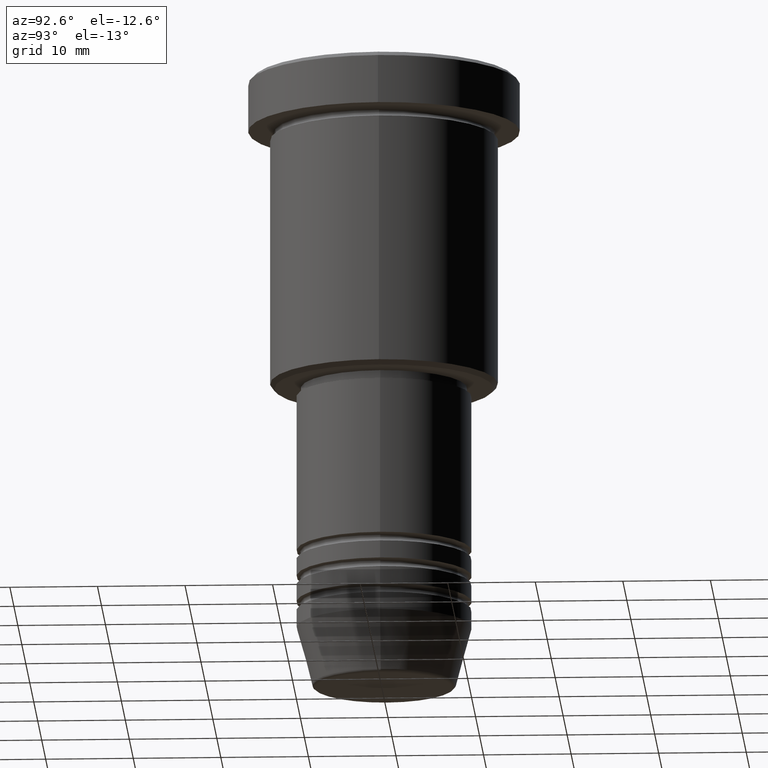
[diagram: clean part render]
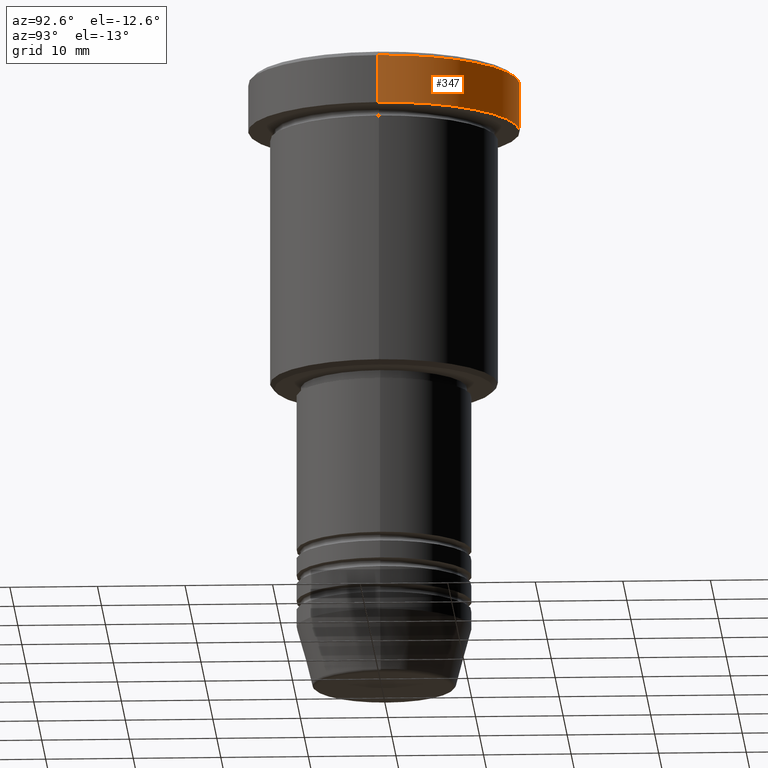
[diagram: same view with one face highlighted and labeled with its STEP entity id]
A machine part, auxiliary view. The second image highlights one B-rep face of the part: STEP entity #347.
In plain terms, the highlighted cylindrical surface (partial cylindrical patch) has radius 15.5 mm, axis along (-0, -0, 1).
Its self-contained STEP definition (entity closure, byte-faithful):
#17 = CARTESIAN_POINT ( 'NONE',  ( -15.50000000000000000, 1.898202538678397557E-15, -5.999999999999995559 ) ) ;
#24 = VERTEX_POINT ( 'NONE', #769 ) ;
#30 = VECTOR ( 'NONE', #60, 1000.000000000000000 ) ;
#60 = DIRECTION ( 'NONE',  ( -0.000000000000000000, -0.000000000000000000, 1.000000000000000000 ) ) ;
#101 = CARTESIAN_POINT ( 'NONE',  ( 0.000000000000000000, 0.000000000000000000, 0.000000000000000000 ) ) ;
#117 = ORIENTED_EDGE ( 'NONE', *, *, #476, .T. ) ;
#150 = CIRCLE ( 'NONE', #168, 15.50000000000000000 ) ;
#168 = AXIS2_PLACEMENT_3D ( 'NONE', #1145, #233, #589 ) ;
#174 = EDGE_CURVE ( 'NONE', #925, #24, #994, .T. ) ;
#175 = CARTESIAN_POINT ( 'NONE',  ( 15.50000000000000000, 0.000000000000000000, 0.000000000000000000 ) ) ;
#233 = DIRECTION ( 'NONE',  ( -0.000000000000000000, -0.000000000000000000, 1.000000000000000000 ) ) ;
#238 = DIRECTION ( 'NONE',  ( -0.000000000000000000, -0.000000000000000000, 1.000000000000000000 ) ) ;
#248 = CARTESIAN_POINT ( 'NONE',  ( -15.50000000000000000, 1.898202538678397557E-15, 0.000000000000000000 ) ) ;
#290 = CYLINDRICAL_SURFACE ( 'NONE', #412, 15.50000000000000000 ) ;
#313 = CARTESIAN_POINT ( 'NONE',  ( 15.50000000000000000, 0.000000000000000000, -5.999999999999995559 ) ) ;
#330 = LINE ( 'NONE', #248, #30 ) ;
#347 = ADVANCED_FACE ( 'NONE', ( #1097 ), #290, .T. ) ;
#376 = VERTEX_POINT ( 'NONE', #17 ) ;
#410 = VECTOR ( 'NONE', #238, 1000.000000000000000 ) ;
#412 = AXIS2_PLACEMENT_3D ( 'NONE', #101, #816, #450 ) ;
#430 = AXIS2_PLACEMENT_3D ( 'NONE', #581, #936, #962 ) ;
#435 = EDGE_CURVE ( 'NONE', #925, #376, #150, .T. ) ;
#450 = DIRECTION ( 'NONE',  ( 1.000000000000000000, 0.000000000000000000, 0.000000000000000000 ) ) ;
#476 = EDGE_CURVE ( 'NONE', #587, #24, #949, .T. ) ;
#514 = CARTESIAN_POINT ( 'NONE',  ( -15.50000000000000000, 1.898202538678397557E-15, -0.4999999999999917843 ) ) ;
#581 = CARTESIAN_POINT ( 'NONE',  ( 0.000000000000000000, 0.000000000000000000, -0.4999999999999917843 ) ) ;
#587 = VERTEX_POINT ( 'NONE', #514 ) ;
#589 = DIRECTION ( 'NONE',  ( 1.000000000000000000, 0.000000000000000000, 0.000000000000000000 ) ) ;
#725 = ORIENTED_EDGE ( 'NONE', *, *, #1046, .T. ) ;
#769 = CARTESIAN_POINT ( 'NONE',  ( 15.50000000000000000, 0.000000000000000000, -0.4999999999999917843 ) ) ;
#816 = DIRECTION ( 'NONE',  ( -0.000000000000000000, -0.000000000000000000, 1.000000000000000000 ) ) ;
#903 = ORIENTED_EDGE ( 'NONE', *, *, #435, .T. ) ;
#925 = VERTEX_POINT ( 'NONE', #313 ) ;
#933 = EDGE_LOOP ( 'NONE', ( #903, #725, #117, #1166 ) ) ;
#936 = DIRECTION ( 'NONE',  ( 0.000000000000000000, 0.000000000000000000, -1.000000000000000000 ) ) ;
#949 = CIRCLE ( 'NONE', #430, 15.50000000000000000 ) ;
#962 = DIRECTION ( 'NONE',  ( 1.000000000000000000, 0.000000000000000000, 0.000000000000000000 ) ) ;
#994 = LINE ( 'NONE', #175, #410 ) ;
#1046 = EDGE_CURVE ( 'NONE', #376, #587, #330, .T. ) ;
#1097 = FACE_OUTER_BOUND ( 'NONE', #933, .T. ) ;
#1145 = CARTESIAN_POINT ( 'NONE',  ( 0.000000000000000000, 0.000000000000000000, -5.999999999999995559 ) ) ;
#1166 = ORIENTED_EDGE ( 'NONE', *, *, #174, .F. ) ;